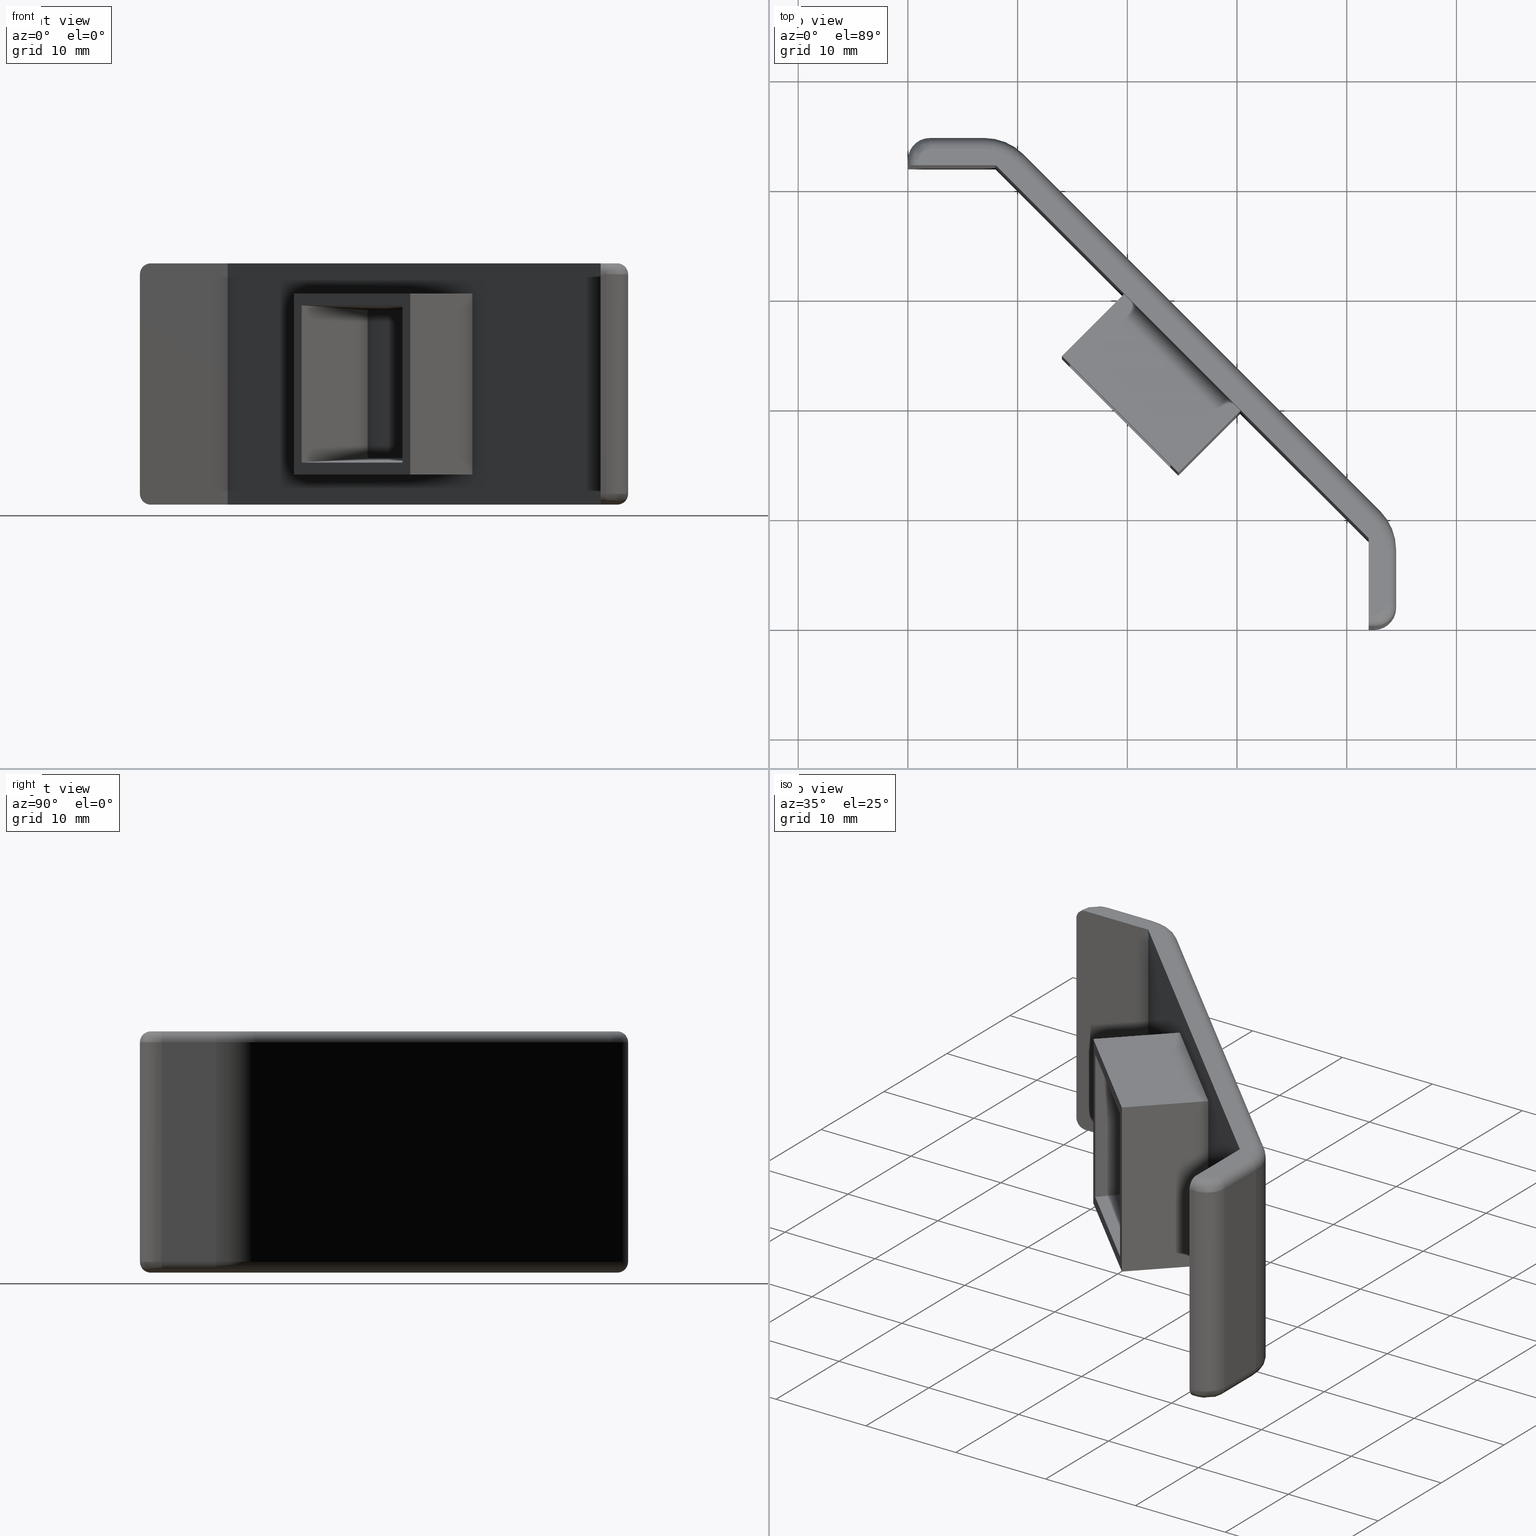
[diagram: canonical four-view strip — front | top / right | iso, engineering-drawing reading convention]
A machine part, canonical four-view strip (front | top / right | iso — engineering-drawing reading convention). The complete STEP part file that produces these views, byte-faithful:
ISO-10303-21;
HEADER;
/* Generated by software containing ST-Developer
 * from STEP Tools, Inc. (www.steptools.com) 
 */

FILE_DESCRIPTION(
/* description */ ('STEP AP203'),
/* implementation_level */ '2;1');

FILE_NAME(
/* name */ 
'Q:\\Catalogo\\2_Accessori Dierre\\Per Download Web e catalogo cartace
o\\CATALOGO ELEMENTI ASSEMBLAGGIO\\PAGINA 36\\CTPYY0000018.stp',
/* time_stamp */ '2018-11-02T11:51:39+01:00',
/* author */ ('fzagni'),
/* organization */ (''),
/* preprocessor_version */ 'ST-DEVELOPER v16.1',
/* originating_system */ 'Autodesk Inventor 2016',
/* authorisation */ '');

FILE_SCHEMA (('AUTOMOTIVE_DESIGN { 1 0 10303 214 3 1 1 }'));
ENDSEC;

DATA;
#10=MECHANICAL_DESIGN_GEOMETRIC_PRESENTATION_REPRESENTATION('',(#16),#1228);
#11=DIMENSIONAL_EXPONENTS(0.,0.,0.,0.,0.,0.,0.);
#12=(
CONVERSION_BASED_UNIT('degree',#13)
NAMED_UNIT(#11)
PLANE_ANGLE_UNIT()
);
#13=PLANE_ANGLE_MEASURE_WITH_UNIT(PLANE_ANGLE_MEASURE(0.01745329252),#1231);
#14=SHAPE_REPRESENTATION_RELATIONSHIP('SRR','None',#1234,#15);
#15=ADVANCED_BREP_SHAPE_REPRESENTATION('',(#17),#1227);
#16=STYLED_ITEM('',(#1243),#17);
#17=MANIFOLD_SOLID_BREP('Solido1',#704);
#18=TOROIDAL_SURFACE('',#770,4.,1.);
#19=TOROIDAL_SURFACE('',#774,4.,1.);
#20=TOROIDAL_SURFACE('',#775,4.,1.);
#21=TOROIDAL_SURFACE('',#779,4.,1.);
#22=(
BOUNDED_SURFACE()
B_SPLINE_SURFACE(2,2,((#1155,#1156,#1157),(#1158,#1159,#1160),(#1161,#1162,
#1163)),.UNSPECIFIED.,.F.,.F.,.F.)
B_SPLINE_SURFACE_WITH_KNOTS((3,3),(3,3),(0.,1.5707963267949),(-1.5707963267949,
0.),.UNSPECIFIED.)
GEOMETRIC_REPRESENTATION_ITEM()
RATIONAL_B_SPLINE_SURFACE(((1.,0.707106781186548,1.),(0.707106781186552,
0.500000000000003,0.707106781186552),(1.,0.707106781186548,1.)))
REPRESENTATION_ITEM('')
SURFACE()
);
#23=(
BOUNDED_SURFACE()
B_SPLINE_SURFACE(2,2,((#1172,#1173,#1174),(#1175,#1176,#1177),(#1178,#1179,
#1180)),.UNSPECIFIED.,.F.,.F.,.F.)
B_SPLINE_SURFACE_WITH_KNOTS((3,3),(3,3),(0.,1.5707963267949),(1.5707963267949,
3.14159265358979),.UNSPECIFIED.)
GEOMETRIC_REPRESENTATION_ITEM()
RATIONAL_B_SPLINE_SURFACE(((1.,0.707106781186548,1.),(0.707106781186548,
0.500000000000001,0.707106781186548),(1.,0.707106781186548,1.)))
REPRESENTATION_ITEM('')
SURFACE()
);
#24=(
BOUNDED_SURFACE()
B_SPLINE_SURFACE(2,2,((#1186,#1187,#1188),(#1189,#1190,#1191),(#1192,#1193,
#1194)),.UNSPECIFIED.,.F.,.F.,.F.)
B_SPLINE_SURFACE_WITH_KNOTS((3,3),(3,3),(-1.5707963267949,0.),(1.5707963267949,
3.14159265358979),.UNSPECIFIED.)
GEOMETRIC_REPRESENTATION_ITEM()
RATIONAL_B_SPLINE_SURFACE(((1.,0.707106781186548,1.),(0.707106781186548,
0.500000000000001,0.707106781186548),(1.,0.707106781186548,1.)))
REPRESENTATION_ITEM('')
SURFACE()
);
#25=(
BOUNDED_SURFACE()
B_SPLINE_SURFACE(2,2,((#1200,#1201,#1202),(#1203,#1204,#1205),(#1206,#1207,
#1208)),.UNSPECIFIED.,.F.,.F.,.F.)
B_SPLINE_SURFACE_WITH_KNOTS((3,3),(3,3),(-1.5707963267949,0.),(-1.5707963267949,
0.),.UNSPECIFIED.)
GEOMETRIC_REPRESENTATION_ITEM()
RATIONAL_B_SPLINE_SURFACE(((1.,0.707106781186548,1.),(0.707106781186552,
0.500000000000003,0.707106781186552),(1.,0.707106781186548,1.)))
REPRESENTATION_ITEM('')
SURFACE()
);
#26=CYLINDRICAL_SURFACE('',#731,2.);
#27=CYLINDRICAL_SURFACE('',#734,2.);
#28=CYLINDRICAL_SURFACE('',#744,1.);
#29=CYLINDRICAL_SURFACE('',#747,1.);
#30=CYLINDRICAL_SURFACE('',#749,1.);
#31=CYLINDRICAL_SURFACE('',#751,0.999999999999998);
#32=CYLINDRICAL_SURFACE('',#755,1.);
#33=CYLINDRICAL_SURFACE('',#757,1.);
#34=CYLINDRICAL_SURFACE('',#760,1.);
#35=CYLINDRICAL_SURFACE('',#762,1.);
#36=CYLINDRICAL_SURFACE('',#765,0.999999999999998);
#37=CYLINDRICAL_SURFACE('',#768,1.);
#38=CYLINDRICAL_SURFACE('',#772,5.);
#39=CYLINDRICAL_SURFACE('',#777,5.);
#40=FACE_BOUND('',#87,.T.);
#41=FACE_BOUND('',#104,.T.);
#42=FACE_OUTER_BOUND('',#84,.T.);
#43=FACE_OUTER_BOUND('',#85,.T.);
#44=FACE_OUTER_BOUND('',#86,.T.);
#45=FACE_OUTER_BOUND('',#88,.T.);
#46=FACE_OUTER_BOUND('',#89,.T.);
#47=FACE_OUTER_BOUND('',#90,.T.);
#48=FACE_OUTER_BOUND('',#91,.T.);
#49=FACE_OUTER_BOUND('',#92,.T.);
#50=FACE_OUTER_BOUND('',#93,.T.);
#51=FACE_OUTER_BOUND('',#94,.T.);
#52=FACE_OUTER_BOUND('',#95,.T.);
#53=FACE_OUTER_BOUND('',#96,.T.);
#54=FACE_OUTER_BOUND('',#97,.T.);
#55=FACE_OUTER_BOUND('',#98,.T.);
#56=FACE_OUTER_BOUND('',#99,.T.);
#57=FACE_OUTER_BOUND('',#100,.T.);
#58=FACE_OUTER_BOUND('',#101,.T.);
#59=FACE_OUTER_BOUND('',#102,.T.);
#60=FACE_OUTER_BOUND('',#103,.T.);
#61=FACE_OUTER_BOUND('',#105,.T.);
#62=FACE_OUTER_BOUND('',#106,.T.);
#63=FACE_OUTER_BOUND('',#107,.T.);
#64=FACE_OUTER_BOUND('',#108,.T.);
#65=FACE_OUTER_BOUND('',#109,.T.);
#66=FACE_OUTER_BOUND('',#110,.T.);
#67=FACE_OUTER_BOUND('',#111,.T.);
#68=FACE_OUTER_BOUND('',#112,.T.);
#69=FACE_OUTER_BOUND('',#113,.T.);
#70=FACE_OUTER_BOUND('',#114,.T.);
#71=FACE_OUTER_BOUND('',#115,.T.);
#72=FACE_OUTER_BOUND('',#116,.T.);
#73=FACE_OUTER_BOUND('',#117,.T.);
#74=FACE_OUTER_BOUND('',#118,.T.);
#75=FACE_OUTER_BOUND('',#119,.T.);
#76=FACE_OUTER_BOUND('',#120,.T.);
#77=FACE_OUTER_BOUND('',#121,.T.);
#78=FACE_OUTER_BOUND('',#122,.T.);
#79=FACE_OUTER_BOUND('',#123,.T.);
#80=FACE_OUTER_BOUND('',#124,.T.);
#81=FACE_OUTER_BOUND('',#125,.T.);
#82=FACE_OUTER_BOUND('',#126,.T.);
#83=FACE_OUTER_BOUND('',#127,.T.);
#84=EDGE_LOOP('',(#446,#447,#448,#449,#450,#451,#452,#453,#454,#455,#456,
#457));
#85=EDGE_LOOP('',(#458,#459,#460,#461,#462,#463,#464,#465,#466,#467,#468,
#469));
#86=EDGE_LOOP('',(#470,#471,#472,#473));
#87=EDGE_LOOP('',(#474,#475,#476,#477));
#88=EDGE_LOOP('',(#478,#479,#480,#481));
#89=EDGE_LOOP('',(#482,#483,#484,#485));
#90=EDGE_LOOP('',(#486,#487,#488,#489));
#91=EDGE_LOOP('',(#490,#491,#492,#493));
#92=EDGE_LOOP('',(#494,#495,#496,#497,#498,#499));
#93=EDGE_LOOP('',(#500,#501,#502,#503,#504,#505));
#94=EDGE_LOOP('',(#506,#507,#508,#509));
#95=EDGE_LOOP('',(#510,#511,#512,#513));
#96=EDGE_LOOP('',(#514,#515,#516,#517));
#97=EDGE_LOOP('',(#518,#519,#520,#521));
#98=EDGE_LOOP('',(#522,#523,#524,#525));
#99=EDGE_LOOP('',(#526,#527,#528,#529));
#100=EDGE_LOOP('',(#530,#531,#532,#533));
#101=EDGE_LOOP('',(#534,#535,#536,#537));
#102=EDGE_LOOP('',(#538,#539,#540,#541));
#103=EDGE_LOOP('',(#542,#543,#544,#545));
#104=EDGE_LOOP('',(#546,#547,#548,#549));
#105=EDGE_LOOP('',(#550,#551,#552,#553));
#106=EDGE_LOOP('',(#554,#555,#556,#557));
#107=EDGE_LOOP('',(#558,#559,#560,#561));
#108=EDGE_LOOP('',(#562,#563,#564,#565));
#109=EDGE_LOOP('',(#566,#567,#568,#569));
#110=EDGE_LOOP('',(#570,#571,#572,#573));
#111=EDGE_LOOP('',(#574,#575,#576,#577));
#112=EDGE_LOOP('',(#578,#579,#580,#581));
#113=EDGE_LOOP('',(#582,#583,#584,#585));
#114=EDGE_LOOP('',(#586,#587,#588,#589));
#115=EDGE_LOOP('',(#590,#591,#592,#593));
#116=EDGE_LOOP('',(#594,#595,#596,#597));
#117=EDGE_LOOP('',(#598,#599,#600,#601));
#118=EDGE_LOOP('',(#602,#603,#604,#605));
#119=EDGE_LOOP('',(#606,#607,#608,#609));
#120=EDGE_LOOP('',(#610,#611,#612,#613));
#121=EDGE_LOOP('',(#614,#615,#616,#617));
#122=EDGE_LOOP('',(#618,#619,#620,#621));
#123=EDGE_LOOP('',(#622,#623,#624,#625));
#124=EDGE_LOOP('',(#626,#627,#628,#629));
#125=EDGE_LOOP('',(#630,#631,#632,#633));
#126=EDGE_LOOP('',(#634,#635,#636,#637));
#127=EDGE_LOOP('',(#638,#639,#640,#641));
#128=LINE('',#998,#190);
#129=LINE('',#1002,#191);
#130=LINE('',#1004,#192);
#131=LINE('',#1006,#193);
#132=LINE('',#1008,#194);
#133=LINE('',#1010,#195);
#134=LINE('',#1014,#196);
#135=LINE('',#1017,#197);
#136=LINE('',#1023,#198);
#137=LINE('',#1027,#199);
#138=LINE('',#1031,#200);
#139=LINE('',#1033,#201);
#140=LINE('',#1035,#202);
#141=LINE('',#1037,#203);
#142=LINE('',#1039,#204);
#143=LINE('',#1042,#205);
#144=LINE('',#1044,#206);
#145=LINE('',#1045,#207);
#146=LINE('',#1048,#208);
#147=LINE('',#1050,#209);
#148=LINE('',#1052,#210);
#149=LINE('',#1053,#211);
#150=LINE('',#1057,#212);
#151=LINE('',#1059,#213);
#152=LINE('',#1061,#214);
#153=LINE('',#1062,#215);
#154=LINE('',#1065,#216);
#155=LINE('',#1067,#217);
#156=LINE('',#1068,#218);
#157=LINE('',#1071,#219);
#158=LINE('',#1073,#220);
#159=LINE('',#1074,#221);
#160=LINE('',#1078,#222);
#161=LINE('',#1080,#223);
#162=LINE('',#1082,#224);
#163=LINE('',#1083,#225);
#164=LINE('',#1090,#226);
#165=LINE('',#1096,#227);
#166=LINE('',#1097,#228);
#167=LINE('',#1098,#229);
#168=LINE('',#1102,#230);
#169=LINE('',#1104,#231);
#170=LINE('',#1106,#232);
#171=LINE('',#1107,#233);
#172=LINE('',#1111,#234);
#173=LINE('',#1113,#235);
#174=LINE('',#1115,#236);
#175=LINE('',#1116,#237);
#176=LINE('',#1120,#238);
#177=LINE('',#1122,#239);
#178=LINE('',#1124,#240);
#179=LINE('',#1125,#241);
#180=LINE('',#1134,#242);
#181=LINE('',#1136,#243);
#182=LINE('',#1137,#244);
#183=LINE('',#1140,#245);
#184=LINE('',#1142,#246);
#185=LINE('',#1143,#247);
#186=LINE('',#1145,#248);
#187=LINE('',#1147,#249);
#188=LINE('',#1148,#250);
#189=LINE('',#1149,#251);
#190=VECTOR('',#786,4.96446609406726);
#191=VECTOR('',#789,0.499999999999998);
#192=VECTOR('',#790,7.);
#193=VECTOR('',#791,48.0832611206852);
#194=VECTOR('',#792,7.);
#195=VECTOR('',#793,0.499999999999998);
#196=VECTOR('',#796,4.96446609406726);
#197=VECTOR('',#799,46.0121933088198);
#198=VECTOR('',#804,46.0121933088198);
#199=VECTOR('',#807,4.96446609406726);
#200=VECTOR('',#810,0.5);
#201=VECTOR('',#811,7.);
#202=VECTOR('',#812,48.0832611206852);
#203=VECTOR('',#813,7.);
#204=VECTOR('',#814,0.499999999999998);
#205=VECTOR('',#817,4.96446609406726);
#206=VECTOR('',#820,22.);
#207=VECTOR('',#821,22.);
#208=VECTOR('',#822,15.);
#209=VECTOR('',#823,16.5);
#210=VECTOR('',#824,15.);
#211=VECTOR('',#825,16.5);
#212=VECTOR('',#828,12.);
#213=VECTOR('',#829,13.5);
#214=VECTOR('',#830,12.);
#215=VECTOR('',#831,13.5);
#216=VECTOR('',#834,8.02656718785062);
#217=VECTOR('',#835,8.02656718785063);
#218=VECTOR('',#836,13.);
#219=VECTOR('',#839,8.02656718785063);
#220=VECTOR('',#840,8.02656718785062);
#221=VECTOR('',#841,13.);
#222=VECTOR('',#844,20.);
#223=VECTOR('',#845,0.499999999999998);
#224=VECTOR('',#846,20.);
#225=VECTOR('',#847,0.499999999999998);
#226=VECTOR('',#856,20.);
#227=VECTOR('',#863,20.);
#228=VECTOR('',#864,0.499999999999998);
#229=VECTOR('',#865,0.499999999999998);
#230=VECTOR('',#868,4.96446609406726);
#231=VECTOR('',#869,20.);
#232=VECTOR('',#870,4.96446609406726);
#233=VECTOR('',#871,20.);
#234=VECTOR('',#874,46.0121933088198);
#235=VECTOR('',#875,20.);
#236=VECTOR('',#876,46.0121933088198);
#237=VECTOR('',#877,20.);
#238=VECTOR('',#880,4.96446609406726);
#239=VECTOR('',#881,20.);
#240=VECTOR('',#882,4.96446609406726);
#241=VECTOR('',#883,20.);
#242=VECTOR('',#898,8.);
#243=VECTOR('',#899,16.5);
#244=VECTOR('',#900,8.);
#245=VECTOR('',#903,8.00000000000001);
#246=VECTOR('',#904,16.5);
#247=VECTOR('',#905,8.00000000000001);
#248=VECTOR('',#908,15.);
#249=VECTOR('',#911,15.);
#250=VECTOR('',#912,14.3385244685287);
#251=VECTOR('',#913,14.3385244685287);
#252=CIRCLE('',#707,4.);
#253=CIRCLE('',#708,1.);
#254=CIRCLE('',#709,1.);
#255=CIRCLE('',#710,4.);
#256=CIRCLE('',#712,4.);
#257=CIRCLE('',#713,4.);
#258=CIRCLE('',#714,1.);
#259=CIRCLE('',#715,1.);
#260=CIRCLE('',#722,1.);
#261=CIRCLE('',#723,1.);
#262=CIRCLE('',#725,1.);
#263=CIRCLE('',#726,1.);
#264=CIRCLE('',#732,2.);
#265=CIRCLE('',#733,2.);
#266=CIRCLE('',#735,2.);
#267=CIRCLE('',#736,2.);
#268=CIRCLE('',#745,1.);
#269=CIRCLE('',#746,1.);
#270=CIRCLE('',#748,1.);
#271=CIRCLE('',#750,1.);
#272=CIRCLE('',#752,0.999999999999999);
#273=CIRCLE('',#753,0.999999999999999);
#274=CIRCLE('',#754,1.);
#275=CIRCLE('',#756,1.);
#276=CIRCLE('',#758,1.);
#277=CIRCLE('',#759,1.);
#278=CIRCLE('',#761,1.);
#279=CIRCLE('',#763,1.);
#280=CIRCLE('',#764,1.);
#281=CIRCLE('',#766,0.999999999999999);
#282=CIRCLE('',#767,0.999999999999999);
#283=CIRCLE('',#769,1.);
#284=CIRCLE('',#771,5.);
#285=CIRCLE('',#773,5.);
#286=CIRCLE('',#776,5.);
#287=CIRCLE('',#778,5.);
#288=VERTEX_POINT('',#994);
#289=VERTEX_POINT('',#995);
#290=VERTEX_POINT('',#997);
#291=VERTEX_POINT('',#999);
#292=VERTEX_POINT('',#1001);
#293=VERTEX_POINT('',#1003);
#294=VERTEX_POINT('',#1005);
#295=VERTEX_POINT('',#1007);
#296=VERTEX_POINT('',#1009);
#297=VERTEX_POINT('',#1011);
#298=VERTEX_POINT('',#1013);
#299=VERTEX_POINT('',#1015);
#300=VERTEX_POINT('',#1019);
#301=VERTEX_POINT('',#1020);
#302=VERTEX_POINT('',#1022);
#303=VERTEX_POINT('',#1024);
#304=VERTEX_POINT('',#1026);
#305=VERTEX_POINT('',#1028);
#306=VERTEX_POINT('',#1030);
#307=VERTEX_POINT('',#1032);
#308=VERTEX_POINT('',#1034);
#309=VERTEX_POINT('',#1036);
#310=VERTEX_POINT('',#1038);
#311=VERTEX_POINT('',#1040);
#312=VERTEX_POINT('',#1046);
#313=VERTEX_POINT('',#1047);
#314=VERTEX_POINT('',#1049);
#315=VERTEX_POINT('',#1051);
#316=VERTEX_POINT('',#1055);
#317=VERTEX_POINT('',#1056);
#318=VERTEX_POINT('',#1058);
#319=VERTEX_POINT('',#1060);
#320=VERTEX_POINT('',#1064);
#321=VERTEX_POINT('',#1066);
#322=VERTEX_POINT('',#1070);
#323=VERTEX_POINT('',#1072);
#324=VERTEX_POINT('',#1076);
#325=VERTEX_POINT('',#1077);
#326=VERTEX_POINT('',#1079);
#327=VERTEX_POINT('',#1081);
#328=VERTEX_POINT('',#1088);
#329=VERTEX_POINT('',#1089);
#330=VERTEX_POINT('',#1094);
#331=VERTEX_POINT('',#1095);
#332=VERTEX_POINT('',#1100);
#333=VERTEX_POINT('',#1101);
#334=VERTEX_POINT('',#1103);
#335=VERTEX_POINT('',#1105);
#336=VERTEX_POINT('',#1109);
#337=VERTEX_POINT('',#1110);
#338=VERTEX_POINT('',#1112);
#339=VERTEX_POINT('',#1114);
#340=VERTEX_POINT('',#1118);
#341=VERTEX_POINT('',#1119);
#342=VERTEX_POINT('',#1121);
#343=VERTEX_POINT('',#1123);
#344=VERTEX_POINT('',#1133);
#345=VERTEX_POINT('',#1135);
#346=VERTEX_POINT('',#1139);
#347=VERTEX_POINT('',#1141);
#348=EDGE_CURVE('',#288,#289,#252,.T.);
#349=EDGE_CURVE('',#288,#290,#128,.T.);
#350=EDGE_CURVE('',#290,#291,#253,.T.);
#351=EDGE_CURVE('',#291,#292,#129,.T.);
#352=EDGE_CURVE('',#292,#293,#130,.T.);
#353=EDGE_CURVE('',#293,#294,#131,.T.);
#354=EDGE_CURVE('',#294,#295,#132,.T.);
#355=EDGE_CURVE('',#295,#296,#133,.T.);
#356=EDGE_CURVE('',#296,#297,#254,.T.);
#357=EDGE_CURVE('',#297,#298,#134,.T.);
#358=EDGE_CURVE('',#299,#298,#255,.T.);
#359=EDGE_CURVE('',#299,#289,#135,.T.);
#360=EDGE_CURVE('',#300,#301,#256,.T.);
#361=EDGE_CURVE('',#300,#302,#136,.T.);
#362=EDGE_CURVE('',#303,#302,#257,.T.);
#363=EDGE_CURVE('',#303,#304,#137,.T.);
#364=EDGE_CURVE('',#304,#305,#258,.T.);
#365=EDGE_CURVE('',#305,#306,#138,.T.);
#366=EDGE_CURVE('',#307,#306,#139,.T.);
#367=EDGE_CURVE('',#308,#307,#140,.T.);
#368=EDGE_CURVE('',#309,#308,#141,.T.);
#369=EDGE_CURVE('',#309,#310,#142,.T.);
#370=EDGE_CURVE('',#310,#311,#259,.T.);
#371=EDGE_CURVE('',#311,#301,#143,.T.);
#372=EDGE_CURVE('',#294,#307,#144,.T.);
#373=EDGE_CURVE('',#293,#308,#145,.T.);
#374=EDGE_CURVE('',#312,#313,#146,.T.);
#375=EDGE_CURVE('',#314,#312,#147,.T.);
#376=EDGE_CURVE('',#315,#314,#148,.T.);
#377=EDGE_CURVE('',#313,#315,#149,.T.);
#378=EDGE_CURVE('',#316,#317,#150,.T.);
#379=EDGE_CURVE('',#318,#316,#151,.T.);
#380=EDGE_CURVE('',#319,#318,#152,.T.);
#381=EDGE_CURVE('',#319,#317,#153,.T.);
#382=EDGE_CURVE('',#316,#320,#154,.T.);
#383=EDGE_CURVE('',#321,#317,#155,.T.);
#384=EDGE_CURVE('',#320,#321,#156,.T.);
#385=EDGE_CURVE('',#322,#319,#157,.T.);
#386=EDGE_CURVE('',#318,#323,#158,.T.);
#387=EDGE_CURVE('',#322,#323,#159,.T.);
#388=EDGE_CURVE('',#324,#325,#160,.T.);
#389=EDGE_CURVE('',#324,#326,#161,.T.);
#390=EDGE_CURVE('',#326,#327,#162,.T.);
#391=EDGE_CURVE('',#327,#325,#163,.T.);
#392=EDGE_CURVE('',#292,#324,#260,.T.);
#393=EDGE_CURVE('',#325,#309,#261,.T.);
#394=EDGE_CURVE('',#328,#329,#164,.T.);
#395=EDGE_CURVE('',#328,#295,#262,.T.);
#396=EDGE_CURVE('',#306,#329,#263,.T.);
#397=EDGE_CURVE('',#330,#331,#165,.T.);
#398=EDGE_CURVE('',#331,#328,#166,.T.);
#399=EDGE_CURVE('',#329,#330,#167,.T.);
#400=EDGE_CURVE('',#332,#333,#168,.T.);
#401=EDGE_CURVE('',#333,#334,#169,.T.);
#402=EDGE_CURVE('',#334,#335,#170,.T.);
#403=EDGE_CURVE('',#335,#332,#171,.T.);
#404=EDGE_CURVE('',#336,#337,#172,.T.);
#405=EDGE_CURVE('',#337,#338,#173,.T.);
#406=EDGE_CURVE('',#338,#339,#174,.T.);
#407=EDGE_CURVE('',#339,#336,#175,.T.);
#408=EDGE_CURVE('',#340,#341,#176,.T.);
#409=EDGE_CURVE('',#341,#342,#177,.T.);
#410=EDGE_CURVE('',#342,#343,#178,.T.);
#411=EDGE_CURVE('',#343,#340,#179,.T.);
#412=EDGE_CURVE('',#335,#331,#264,.T.);
#413=EDGE_CURVE('',#330,#332,#265,.T.);
#414=EDGE_CURVE('',#326,#340,#266,.T.);
#415=EDGE_CURVE('',#343,#327,#267,.T.);
#416=EDGE_CURVE('',#344,#312,#180,.T.);
#417=EDGE_CURVE('',#345,#344,#181,.T.);
#418=EDGE_CURVE('',#345,#314,#182,.T.);
#419=EDGE_CURVE('',#346,#315,#183,.T.);
#420=EDGE_CURVE('',#347,#346,#184,.T.);
#421=EDGE_CURVE('',#347,#313,#185,.T.);
#422=EDGE_CURVE('',#346,#345,#186,.T.);
#423=EDGE_CURVE('',#344,#347,#187,.T.);
#424=EDGE_CURVE('',#322,#321,#188,.T.);
#425=EDGE_CURVE('',#323,#320,#189,.T.);
#426=EDGE_CURVE('',#296,#331,#268,.T.);
#427=EDGE_CURVE('',#297,#335,#269,.T.);
#428=EDGE_CURVE('',#334,#298,#270,.T.);
#429=EDGE_CURVE('',#326,#291,#271,.T.);
#430=EDGE_CURVE('',#336,#289,#272,.T.);
#431=EDGE_CURVE('',#299,#337,#273,.T.);
#432=EDGE_CURVE('',#340,#290,#274,.T.);
#433=EDGE_CURVE('',#288,#341,#275,.T.);
#434=EDGE_CURVE('',#310,#327,#276,.T.);
#435=EDGE_CURVE('',#311,#343,#277,.T.);
#436=EDGE_CURVE('',#330,#305,#278,.T.);
#437=EDGE_CURVE('',#342,#301,#279,.T.);
#438=EDGE_CURVE('',#332,#304,#280,.T.);
#439=EDGE_CURVE('',#338,#302,#281,.T.);
#440=EDGE_CURVE('',#300,#339,#282,.T.);
#441=EDGE_CURVE('',#303,#333,#283,.T.);
#442=EDGE_CURVE('',#341,#336,#284,.T.);
#443=EDGE_CURVE('',#342,#339,#285,.T.);
#444=EDGE_CURVE('',#337,#334,#286,.T.);
#445=EDGE_CURVE('',#338,#333,#287,.T.);
#446=ORIENTED_EDGE('',*,*,#348,.F.);
#447=ORIENTED_EDGE('',*,*,#349,.T.);
#448=ORIENTED_EDGE('',*,*,#350,.T.);
#449=ORIENTED_EDGE('',*,*,#351,.T.);
#450=ORIENTED_EDGE('',*,*,#352,.T.);
#451=ORIENTED_EDGE('',*,*,#353,.T.);
#452=ORIENTED_EDGE('',*,*,#354,.T.);
#453=ORIENTED_EDGE('',*,*,#355,.T.);
#454=ORIENTED_EDGE('',*,*,#356,.T.);
#455=ORIENTED_EDGE('',*,*,#357,.T.);
#456=ORIENTED_EDGE('',*,*,#358,.F.);
#457=ORIENTED_EDGE('',*,*,#359,.T.);
#458=ORIENTED_EDGE('',*,*,#360,.F.);
#459=ORIENTED_EDGE('',*,*,#361,.T.);
#460=ORIENTED_EDGE('',*,*,#362,.F.);
#461=ORIENTED_EDGE('',*,*,#363,.T.);
#462=ORIENTED_EDGE('',*,*,#364,.T.);
#463=ORIENTED_EDGE('',*,*,#365,.T.);
#464=ORIENTED_EDGE('',*,*,#366,.F.);
#465=ORIENTED_EDGE('',*,*,#367,.F.);
#466=ORIENTED_EDGE('',*,*,#368,.F.);
#467=ORIENTED_EDGE('',*,*,#369,.T.);
#468=ORIENTED_EDGE('',*,*,#370,.T.);
#469=ORIENTED_EDGE('',*,*,#371,.T.);
#470=ORIENTED_EDGE('',*,*,#367,.T.);
#471=ORIENTED_EDGE('',*,*,#372,.F.);
#472=ORIENTED_EDGE('',*,*,#353,.F.);
#473=ORIENTED_EDGE('',*,*,#373,.T.);
#474=ORIENTED_EDGE('',*,*,#374,.F.);
#475=ORIENTED_EDGE('',*,*,#375,.F.);
#476=ORIENTED_EDGE('',*,*,#376,.F.);
#477=ORIENTED_EDGE('',*,*,#377,.F.);
#478=ORIENTED_EDGE('',*,*,#378,.F.);
#479=ORIENTED_EDGE('',*,*,#379,.F.);
#480=ORIENTED_EDGE('',*,*,#380,.F.);
#481=ORIENTED_EDGE('',*,*,#381,.T.);
#482=ORIENTED_EDGE('',*,*,#382,.F.);
#483=ORIENTED_EDGE('',*,*,#378,.T.);
#484=ORIENTED_EDGE('',*,*,#383,.F.);
#485=ORIENTED_EDGE('',*,*,#384,.F.);
#486=ORIENTED_EDGE('',*,*,#385,.T.);
#487=ORIENTED_EDGE('',*,*,#380,.T.);
#488=ORIENTED_EDGE('',*,*,#386,.T.);
#489=ORIENTED_EDGE('',*,*,#387,.F.);
#490=ORIENTED_EDGE('',*,*,#388,.F.);
#491=ORIENTED_EDGE('',*,*,#389,.T.);
#492=ORIENTED_EDGE('',*,*,#390,.T.);
#493=ORIENTED_EDGE('',*,*,#391,.T.);
#494=ORIENTED_EDGE('',*,*,#352,.F.);
#495=ORIENTED_EDGE('',*,*,#392,.T.);
#496=ORIENTED_EDGE('',*,*,#388,.T.);
#497=ORIENTED_EDGE('',*,*,#393,.T.);
#498=ORIENTED_EDGE('',*,*,#368,.T.);
#499=ORIENTED_EDGE('',*,*,#373,.F.);
#500=ORIENTED_EDGE('',*,*,#394,.F.);
#501=ORIENTED_EDGE('',*,*,#395,.T.);
#502=ORIENTED_EDGE('',*,*,#354,.F.);
#503=ORIENTED_EDGE('',*,*,#372,.T.);
#504=ORIENTED_EDGE('',*,*,#366,.T.);
#505=ORIENTED_EDGE('',*,*,#396,.T.);
#506=ORIENTED_EDGE('',*,*,#397,.T.);
#507=ORIENTED_EDGE('',*,*,#398,.T.);
#508=ORIENTED_EDGE('',*,*,#394,.T.);
#509=ORIENTED_EDGE('',*,*,#399,.T.);
#510=ORIENTED_EDGE('',*,*,#400,.T.);
#511=ORIENTED_EDGE('',*,*,#401,.T.);
#512=ORIENTED_EDGE('',*,*,#402,.T.);
#513=ORIENTED_EDGE('',*,*,#403,.T.);
#514=ORIENTED_EDGE('',*,*,#404,.T.);
#515=ORIENTED_EDGE('',*,*,#405,.T.);
#516=ORIENTED_EDGE('',*,*,#406,.T.);
#517=ORIENTED_EDGE('',*,*,#407,.T.);
#518=ORIENTED_EDGE('',*,*,#408,.T.);
#519=ORIENTED_EDGE('',*,*,#409,.T.);
#520=ORIENTED_EDGE('',*,*,#410,.T.);
#521=ORIENTED_EDGE('',*,*,#411,.T.);
#522=ORIENTED_EDGE('',*,*,#403,.F.);
#523=ORIENTED_EDGE('',*,*,#412,.T.);
#524=ORIENTED_EDGE('',*,*,#397,.F.);
#525=ORIENTED_EDGE('',*,*,#413,.T.);
#526=ORIENTED_EDGE('',*,*,#390,.F.);
#527=ORIENTED_EDGE('',*,*,#414,.T.);
#528=ORIENTED_EDGE('',*,*,#411,.F.);
#529=ORIENTED_EDGE('',*,*,#415,.T.);
#530=ORIENTED_EDGE('',*,*,#375,.T.);
#531=ORIENTED_EDGE('',*,*,#416,.F.);
#532=ORIENTED_EDGE('',*,*,#417,.F.);
#533=ORIENTED_EDGE('',*,*,#418,.T.);
#534=ORIENTED_EDGE('',*,*,#419,.F.);
#535=ORIENTED_EDGE('',*,*,#420,.F.);
#536=ORIENTED_EDGE('',*,*,#421,.T.);
#537=ORIENTED_EDGE('',*,*,#377,.T.);
#538=ORIENTED_EDGE('',*,*,#376,.T.);
#539=ORIENTED_EDGE('',*,*,#418,.F.);
#540=ORIENTED_EDGE('',*,*,#422,.F.);
#541=ORIENTED_EDGE('',*,*,#419,.T.);
#542=ORIENTED_EDGE('',*,*,#417,.T.);
#543=ORIENTED_EDGE('',*,*,#423,.T.);
#544=ORIENTED_EDGE('',*,*,#420,.T.);
#545=ORIENTED_EDGE('',*,*,#422,.T.);
#546=ORIENTED_EDGE('',*,*,#424,.F.);
#547=ORIENTED_EDGE('',*,*,#387,.T.);
#548=ORIENTED_EDGE('',*,*,#425,.T.);
#549=ORIENTED_EDGE('',*,*,#384,.T.);
#550=ORIENTED_EDGE('',*,*,#374,.T.);
#551=ORIENTED_EDGE('',*,*,#421,.F.);
#552=ORIENTED_EDGE('',*,*,#423,.F.);
#553=ORIENTED_EDGE('',*,*,#416,.T.);
#554=ORIENTED_EDGE('',*,*,#386,.F.);
#555=ORIENTED_EDGE('',*,*,#379,.T.);
#556=ORIENTED_EDGE('',*,*,#382,.T.);
#557=ORIENTED_EDGE('',*,*,#425,.F.);
#558=ORIENTED_EDGE('',*,*,#385,.F.);
#559=ORIENTED_EDGE('',*,*,#424,.T.);
#560=ORIENTED_EDGE('',*,*,#383,.T.);
#561=ORIENTED_EDGE('',*,*,#381,.F.);
#562=ORIENTED_EDGE('',*,*,#395,.F.);
#563=ORIENTED_EDGE('',*,*,#398,.F.);
#564=ORIENTED_EDGE('',*,*,#426,.F.);
#565=ORIENTED_EDGE('',*,*,#355,.F.);
#566=ORIENTED_EDGE('',*,*,#426,.T.);
#567=ORIENTED_EDGE('',*,*,#412,.F.);
#568=ORIENTED_EDGE('',*,*,#427,.F.);
#569=ORIENTED_EDGE('',*,*,#356,.F.);
#570=ORIENTED_EDGE('',*,*,#402,.F.);
#571=ORIENTED_EDGE('',*,*,#428,.T.);
#572=ORIENTED_EDGE('',*,*,#357,.F.);
#573=ORIENTED_EDGE('',*,*,#427,.T.);
#574=ORIENTED_EDGE('',*,*,#392,.F.);
#575=ORIENTED_EDGE('',*,*,#351,.F.);
#576=ORIENTED_EDGE('',*,*,#429,.F.);
#577=ORIENTED_EDGE('',*,*,#389,.F.);
#578=ORIENTED_EDGE('',*,*,#404,.F.);
#579=ORIENTED_EDGE('',*,*,#430,.T.);
#580=ORIENTED_EDGE('',*,*,#359,.F.);
#581=ORIENTED_EDGE('',*,*,#431,.T.);
#582=ORIENTED_EDGE('',*,*,#429,.T.);
#583=ORIENTED_EDGE('',*,*,#350,.F.);
#584=ORIENTED_EDGE('',*,*,#432,.F.);
#585=ORIENTED_EDGE('',*,*,#414,.F.);
#586=ORIENTED_EDGE('',*,*,#349,.F.);
#587=ORIENTED_EDGE('',*,*,#433,.T.);
#588=ORIENTED_EDGE('',*,*,#408,.F.);
#589=ORIENTED_EDGE('',*,*,#432,.T.);
#590=ORIENTED_EDGE('',*,*,#393,.F.);
#591=ORIENTED_EDGE('',*,*,#391,.F.);
#592=ORIENTED_EDGE('',*,*,#434,.F.);
#593=ORIENTED_EDGE('',*,*,#369,.F.);
#594=ORIENTED_EDGE('',*,*,#434,.T.);
#595=ORIENTED_EDGE('',*,*,#415,.F.);
#596=ORIENTED_EDGE('',*,*,#435,.F.);
#597=ORIENTED_EDGE('',*,*,#370,.F.);
#598=ORIENTED_EDGE('',*,*,#396,.F.);
#599=ORIENTED_EDGE('',*,*,#365,.F.);
#600=ORIENTED_EDGE('',*,*,#436,.F.);
#601=ORIENTED_EDGE('',*,*,#399,.F.);
#602=ORIENTED_EDGE('',*,*,#410,.F.);
#603=ORIENTED_EDGE('',*,*,#437,.T.);
#604=ORIENTED_EDGE('',*,*,#371,.F.);
#605=ORIENTED_EDGE('',*,*,#435,.T.);
#606=ORIENTED_EDGE('',*,*,#436,.T.);
#607=ORIENTED_EDGE('',*,*,#364,.F.);
#608=ORIENTED_EDGE('',*,*,#438,.F.);
#609=ORIENTED_EDGE('',*,*,#413,.F.);
#610=ORIENTED_EDGE('',*,*,#406,.F.);
#611=ORIENTED_EDGE('',*,*,#439,.T.);
#612=ORIENTED_EDGE('',*,*,#361,.F.);
#613=ORIENTED_EDGE('',*,*,#440,.T.);
#614=ORIENTED_EDGE('',*,*,#363,.F.);
#615=ORIENTED_EDGE('',*,*,#441,.T.);
#616=ORIENTED_EDGE('',*,*,#400,.F.);
#617=ORIENTED_EDGE('',*,*,#438,.T.);
#618=ORIENTED_EDGE('',*,*,#348,.T.);
#619=ORIENTED_EDGE('',*,*,#430,.F.);
#620=ORIENTED_EDGE('',*,*,#442,.F.);
#621=ORIENTED_EDGE('',*,*,#433,.F.);
#622=ORIENTED_EDGE('',*,*,#442,.T.);
#623=ORIENTED_EDGE('',*,*,#407,.F.);
#624=ORIENTED_EDGE('',*,*,#443,.F.);
#625=ORIENTED_EDGE('',*,*,#409,.F.);
#626=ORIENTED_EDGE('',*,*,#437,.F.);
#627=ORIENTED_EDGE('',*,*,#443,.T.);
#628=ORIENTED_EDGE('',*,*,#440,.F.);
#629=ORIENTED_EDGE('',*,*,#360,.T.);
#630=ORIENTED_EDGE('',*,*,#358,.T.);
#631=ORIENTED_EDGE('',*,*,#428,.F.);
#632=ORIENTED_EDGE('',*,*,#444,.F.);
#633=ORIENTED_EDGE('',*,*,#431,.F.);
#634=ORIENTED_EDGE('',*,*,#444,.T.);
#635=ORIENTED_EDGE('',*,*,#401,.F.);
#636=ORIENTED_EDGE('',*,*,#445,.F.);
#637=ORIENTED_EDGE('',*,*,#405,.F.);
#638=ORIENTED_EDGE('',*,*,#439,.F.);
#639=ORIENTED_EDGE('',*,*,#445,.T.);
#640=ORIENTED_EDGE('',*,*,#441,.F.);
#641=ORIENTED_EDGE('',*,*,#362,.T.);
#642=PLANE('',#706);
#643=PLANE('',#711);
#644=PLANE('',#716);
#645=PLANE('',#717);
#646=PLANE('',#718);
#647=PLANE('',#719);
#648=PLANE('',#720);
#649=PLANE('',#721);
#650=PLANE('',#724);
#651=PLANE('',#727);
#652=PLANE('',#728);
#653=PLANE('',#729);
#654=PLANE('',#730);
#655=PLANE('',#737);
#656=PLANE('',#738);
#657=PLANE('',#739);
#658=PLANE('',#740);
#659=PLANE('',#741);
#660=PLANE('',#742);
#661=PLANE('',#743);
#662=ADVANCED_FACE('',(#42),#642,.T.);
#663=ADVANCED_FACE('',(#43),#643,.F.);
#664=ADVANCED_FACE('',(#44,#40),#644,.F.);
#665=ADVANCED_FACE('',(#45),#645,.F.);
#666=ADVANCED_FACE('',(#46),#646,.T.);
#667=ADVANCED_FACE('',(#47),#647,.T.);
#668=ADVANCED_FACE('',(#48),#648,.F.);
#669=ADVANCED_FACE('',(#49),#649,.F.);
#670=ADVANCED_FACE('',(#50),#650,.F.);
#671=ADVANCED_FACE('',(#51),#651,.F.);
#672=ADVANCED_FACE('',(#52),#652,.F.);
#673=ADVANCED_FACE('',(#53),#653,.F.);
#674=ADVANCED_FACE('',(#54),#654,.F.);
#675=ADVANCED_FACE('',(#55),#26,.T.);
#676=ADVANCED_FACE('',(#56),#27,.T.);
#677=ADVANCED_FACE('',(#57),#655,.F.);
#678=ADVANCED_FACE('',(#58),#656,.F.);
#679=ADVANCED_FACE('',(#59),#657,.F.);
#680=ADVANCED_FACE('',(#60,#41),#658,.F.);
#681=ADVANCED_FACE('',(#61),#659,.F.);
#682=ADVANCED_FACE('',(#62),#660,.F.);
#683=ADVANCED_FACE('',(#63),#661,.F.);
#684=ADVANCED_FACE('',(#64),#28,.T.);
#685=ADVANCED_FACE('',(#65),#22,.F.);
#686=ADVANCED_FACE('',(#66),#29,.T.);
#687=ADVANCED_FACE('',(#67),#30,.T.);
#688=ADVANCED_FACE('',(#68),#31,.T.);
#689=ADVANCED_FACE('',(#69),#23,.F.);
#690=ADVANCED_FACE('',(#70),#32,.T.);
#691=ADVANCED_FACE('',(#71),#33,.T.);
#692=ADVANCED_FACE('',(#72),#24,.F.);
#693=ADVANCED_FACE('',(#73),#34,.T.);
#694=ADVANCED_FACE('',(#74),#35,.T.);
#695=ADVANCED_FACE('',(#75),#25,.F.);
#696=ADVANCED_FACE('',(#76),#36,.T.);
#697=ADVANCED_FACE('',(#77),#37,.T.);
#698=ADVANCED_FACE('',(#78),#18,.T.);
#699=ADVANCED_FACE('',(#79),#38,.T.);
#700=ADVANCED_FACE('',(#80),#19,.T.);
#701=ADVANCED_FACE('',(#81),#20,.T.);
#702=ADVANCED_FACE('',(#82),#39,.T.);
#703=ADVANCED_FACE('',(#83),#21,.T.);
#704=CLOSED_SHELL('',(#662,#663,#664,#665,#666,#667,#668,#669,#670,#671,
#672,#673,#674,#675,#676,#677,#678,#679,#680,#681,#682,#683,#684,#685,#686,
#687,#688,#689,#690,#691,#692,#693,#694,#695,#696,#697,#698,#699,#700,#701,
#702,#703));
#705=AXIS2_PLACEMENT_3D('placement',#992,#780,#781);
#706=AXIS2_PLACEMENT_3D('',#993,#782,#783);
#707=AXIS2_PLACEMENT_3D('',#996,#784,#785);
#708=AXIS2_PLACEMENT_3D('',#1000,#787,#788);
#709=AXIS2_PLACEMENT_3D('',#1012,#794,#795);
#710=AXIS2_PLACEMENT_3D('',#1016,#797,#798);
#711=AXIS2_PLACEMENT_3D('',#1018,#800,#801);
#712=AXIS2_PLACEMENT_3D('',#1021,#802,#803);
#713=AXIS2_PLACEMENT_3D('',#1025,#805,#806);
#714=AXIS2_PLACEMENT_3D('',#1029,#808,#809);
#715=AXIS2_PLACEMENT_3D('',#1041,#815,#816);
#716=AXIS2_PLACEMENT_3D('',#1043,#818,#819);
#717=AXIS2_PLACEMENT_3D('',#1054,#826,#827);
#718=AXIS2_PLACEMENT_3D('',#1063,#832,#833);
#719=AXIS2_PLACEMENT_3D('',#1069,#837,#838);
#720=AXIS2_PLACEMENT_3D('',#1075,#842,#843);
#721=AXIS2_PLACEMENT_3D('',#1084,#848,#849);
#722=AXIS2_PLACEMENT_3D('',#1085,#850,#851);
#723=AXIS2_PLACEMENT_3D('',#1086,#852,#853);
#724=AXIS2_PLACEMENT_3D('',#1087,#854,#855);
#725=AXIS2_PLACEMENT_3D('',#1091,#857,#858);
#726=AXIS2_PLACEMENT_3D('',#1092,#859,#860);
#727=AXIS2_PLACEMENT_3D('',#1093,#861,#862);
#728=AXIS2_PLACEMENT_3D('',#1099,#866,#867);
#729=AXIS2_PLACEMENT_3D('',#1108,#872,#873);
#730=AXIS2_PLACEMENT_3D('',#1117,#878,#879);
#731=AXIS2_PLACEMENT_3D('',#1126,#884,#885);
#732=AXIS2_PLACEMENT_3D('',#1127,#886,#887);
#733=AXIS2_PLACEMENT_3D('',#1128,#888,#889);
#734=AXIS2_PLACEMENT_3D('',#1129,#890,#891);
#735=AXIS2_PLACEMENT_3D('',#1130,#892,#893);
#736=AXIS2_PLACEMENT_3D('',#1131,#894,#895);
#737=AXIS2_PLACEMENT_3D('',#1132,#896,#897);
#738=AXIS2_PLACEMENT_3D('',#1138,#901,#902);
#739=AXIS2_PLACEMENT_3D('',#1144,#906,#907);
#740=AXIS2_PLACEMENT_3D('',#1146,#909,#910);
#741=AXIS2_PLACEMENT_3D('',#1150,#914,#915);
#742=AXIS2_PLACEMENT_3D('',#1151,#916,#917);
#743=AXIS2_PLACEMENT_3D('',#1152,#918,#919);
#744=AXIS2_PLACEMENT_3D('',#1153,#920,#921);
#745=AXIS2_PLACEMENT_3D('',#1154,#922,#923);
#746=AXIS2_PLACEMENT_3D('',#1164,#924,#925);
#747=AXIS2_PLACEMENT_3D('',#1165,#926,#927);
#748=AXIS2_PLACEMENT_3D('',#1166,#928,#929);
#749=AXIS2_PLACEMENT_3D('',#1167,#930,#931);
#750=AXIS2_PLACEMENT_3D('',#1168,#932,#933);
#751=AXIS2_PLACEMENT_3D('',#1169,#934,#935);
#752=AXIS2_PLACEMENT_3D('',#1170,#936,#937);
#753=AXIS2_PLACEMENT_3D('',#1171,#938,#939);
#754=AXIS2_PLACEMENT_3D('',#1181,#940,#941);
#755=AXIS2_PLACEMENT_3D('',#1182,#942,#943);
#756=AXIS2_PLACEMENT_3D('',#1183,#944,#945);
#757=AXIS2_PLACEMENT_3D('',#1184,#946,#947);
#758=AXIS2_PLACEMENT_3D('',#1185,#948,#949);
#759=AXIS2_PLACEMENT_3D('',#1195,#950,#951);
#760=AXIS2_PLACEMENT_3D('',#1196,#952,#953);
#761=AXIS2_PLACEMENT_3D('',#1197,#954,#955);
#762=AXIS2_PLACEMENT_3D('',#1198,#956,#957);
#763=AXIS2_PLACEMENT_3D('',#1199,#958,#959);
#764=AXIS2_PLACEMENT_3D('',#1209,#960,#961);
#765=AXIS2_PLACEMENT_3D('',#1210,#962,#963);
#766=AXIS2_PLACEMENT_3D('',#1211,#964,#965);
#767=AXIS2_PLACEMENT_3D('',#1212,#966,#967);
#768=AXIS2_PLACEMENT_3D('',#1213,#968,#969);
#769=AXIS2_PLACEMENT_3D('',#1214,#970,#971);
#770=AXIS2_PLACEMENT_3D('',#1215,#972,#973);
#771=AXIS2_PLACEMENT_3D('',#1216,#974,#975);
#772=AXIS2_PLACEMENT_3D('',#1217,#976,#977);
#773=AXIS2_PLACEMENT_3D('',#1218,#978,#979);
#774=AXIS2_PLACEMENT_3D('',#1219,#980,#981);
#775=AXIS2_PLACEMENT_3D('',#1220,#982,#983);
#776=AXIS2_PLACEMENT_3D('',#1221,#984,#985);
#777=AXIS2_PLACEMENT_3D('',#1222,#986,#987);
#778=AXIS2_PLACEMENT_3D('',#1223,#988,#989);
#779=AXIS2_PLACEMENT_3D('',#1224,#990,#991);
#780=DIRECTION('axis',(0.,0.,1.));
#781=DIRECTION('refdir',(1.,0.,0.));
#782=DIRECTION('center_axis',(0.,0.,1.));
#783=DIRECTION('ref_axis',(1.,0.,0.));
#784=DIRECTION('center_axis',(0.,0.,-1.));
#785=DIRECTION('ref_axis',(1.,3.46944695195361E-15,0.));
#786=DIRECTION('',(-1.,0.,0.));
#787=DIRECTION('center_axis',(0.,0.,1.));
#788=DIRECTION('ref_axis',(1.,0.,0.));
#789=DIRECTION('',(1.71444889535133E-16,-1.,0.));
#790=DIRECTION('',(1.,0.,0.));
#791=DIRECTION('',(0.707106781186547,-0.707106781186547,0.));
#792=DIRECTION('',(0.,-1.,0.));
#793=DIRECTION('',(1.,0.,0.));
#794=DIRECTION('center_axis',(0.,0.,1.));
#795=DIRECTION('ref_axis',(1.,0.,0.));
#796=DIRECTION('',(0.,1.,0.));
#797=DIRECTION('center_axis',(0.,0.,-1.));
#798=DIRECTION('ref_axis',(1.,5.42101086242752E-15,0.));
#799=DIRECTION('',(-0.707106781186548,0.707106781186548,0.));
#800=DIRECTION('center_axis',(0.,0.,1.));
#801=DIRECTION('ref_axis',(1.,0.,0.));
#802=DIRECTION('center_axis',(0.,0.,1.));
#803=DIRECTION('ref_axis',(1.,0.,0.));
#804=DIRECTION('',(0.707106781186547,-0.707106781186547,0.));
#805=DIRECTION('center_axis',(0.,0.,1.));
#806=DIRECTION('ref_axis',(1.,0.,0.));
#807=DIRECTION('',(0.,-1.,0.));
#808=DIRECTION('center_axis',(0.,0.,-1.));
#809=DIRECTION('ref_axis',(1.,0.,0.));
#810=DIRECTION('',(-1.,0.,0.));
#811=DIRECTION('',(0.,-1.,0.));
#812=DIRECTION('',(0.707106781186547,-0.707106781186547,0.));
#813=DIRECTION('',(1.,0.,0.));
#814=DIRECTION('',(-1.71444889535133E-16,1.,0.));
#815=DIRECTION('center_axis',(0.,0.,-1.));
#816=DIRECTION('ref_axis',(1.,0.,0.));
#817=DIRECTION('',(1.,0.,0.));
#818=DIRECTION('center_axis',(0.707106781186548,0.707106781186548,0.));
#819=DIRECTION('ref_axis',(-0.707106781186548,0.707106781186547,0.));
#820=DIRECTION('',(0.,0.,-1.));
#821=DIRECTION('',(0.,0.,-1.));
#822=DIRECTION('',(0.707106781186547,-0.707106781186548,0.));
#823=DIRECTION('',(0.,0.,-1.));
#824=DIRECTION('',(-0.707106781186547,0.707106781186548,0.));
#825=DIRECTION('',(0.,0.,1.));
#826=DIRECTION('center_axis',(0.707106781186548,0.707106781186548,0.));
#827=DIRECTION('ref_axis',(-0.707106781186548,0.707106781186547,0.));
#828=DIRECTION('',(-0.707106781186547,0.707106781186548,0.));
#829=DIRECTION('',(0.,0.,-1.));
#830=DIRECTION('',(0.707106781186547,-0.707106781186548,0.));
#831=DIRECTION('',(0.,0.,-1.));
#832=DIRECTION('center_axis',(-0.0370071095592681,-0.0370071095592681,0.998629534754574));
#833=DIRECTION('ref_axis',(0.999314062578908,0.,0.0370324767202721));
#834=DIRECTION('',(-0.660718428536475,-0.748814219008006,-0.0522343144275855));
#835=DIRECTION('',(0.748814219008006,0.660718428536476,0.0522343144275855));
#836=DIRECTION('',(-0.707106781186547,0.707106781186548,-3.47420823359313E-18));
#837=DIRECTION('center_axis',(-0.0370071095592681,-0.0370071095592681,-0.998629534754574));
#838=DIRECTION('ref_axis',(-0.999314062578908,0.,0.0370324767202721));
#839=DIRECTION('',(0.748814219008006,0.660718428536476,-0.0522343144275855));
#840=DIRECTION('',(-0.660718428536475,-0.748814219008006,0.0522343144275855));
#841=DIRECTION('',(0.707106781186547,-0.707106781186548,-3.47420823359313E-18));
#842=DIRECTION('center_axis',(1.,1.71444889535133E-16,0.));
#843=DIRECTION('ref_axis',(-1.71444889535133E-16,1.,0.));
#844=DIRECTION('',(0.,0.,-1.));
#845=DIRECTION('',(-1.71444889535133E-16,1.,0.));
#846=DIRECTION('',(0.,0.,-1.));
#847=DIRECTION('',(1.71444889535133E-16,-1.,0.));
#848=DIRECTION('center_axis',(0.,1.,0.));
#849=DIRECTION('ref_axis',(0.,0.,1.));
#850=DIRECTION('center_axis',(0.,-1.,0.));
#851=DIRECTION('ref_axis',(0.,0.,1.));
#852=DIRECTION('center_axis',(0.,-1.,0.));
#853=DIRECTION('ref_axis',(0.,0.,1.));
#854=DIRECTION('center_axis',(1.,0.,0.));
#855=DIRECTION('ref_axis',(0.,0.,-1.));
#856=DIRECTION('',(0.,0.,-1.));
#857=DIRECTION('center_axis',(-1.,0.,0.));
#858=DIRECTION('ref_axis',(0.,0.,-1.));
#859=DIRECTION('center_axis',(-1.,0.,0.));
#860=DIRECTION('ref_axis',(0.,0.,-1.));
#861=DIRECTION('center_axis',(0.,1.,0.));
#862=DIRECTION('ref_axis',(0.,0.,1.));
#863=DIRECTION('',(0.,0.,1.));
#864=DIRECTION('',(-1.,0.,0.));
#865=DIRECTION('',(1.,0.,0.));
#866=DIRECTION('center_axis',(-1.,0.,0.));
#867=DIRECTION('ref_axis',(0.,0.,1.));
#868=DIRECTION('',(0.,1.,0.));
#869=DIRECTION('',(0.,0.,1.));
#870=DIRECTION('',(0.,-1.,0.));
#871=DIRECTION('',(0.,0.,-1.));
#872=DIRECTION('center_axis',(-0.707106781186548,-0.707106781186548,0.));
#873=DIRECTION('ref_axis',(0.707106781186547,-0.707106781186548,0.));
#874=DIRECTION('',(0.707106781186547,-0.707106781186547,0.));
#875=DIRECTION('',(0.,0.,-1.));
#876=DIRECTION('',(-0.707106781186547,0.707106781186547,0.));
#877=DIRECTION('',(0.,0.,1.));
#878=DIRECTION('center_axis',(0.,-1.,0.));
#879=DIRECTION('ref_axis',(0.,0.,-1.));
#880=DIRECTION('',(1.,0.,0.));
#881=DIRECTION('',(0.,0.,-1.));
#882=DIRECTION('',(-1.,0.,0.));
#883=DIRECTION('',(0.,0.,1.));
#884=DIRECTION('center_axis',(0.,0.,-1.));
#885=DIRECTION('ref_axis',(-1.,0.,0.));
#886=DIRECTION('center_axis',(0.,0.,-1.));
#887=DIRECTION('ref_axis',(1.,0.,0.));
#888=DIRECTION('center_axis',(0.,0.,1.));
#889=DIRECTION('ref_axis',(1.,0.,0.));
#890=DIRECTION('center_axis',(0.,0.,-1.));
#891=DIRECTION('ref_axis',(-1.,0.,0.));
#892=DIRECTION('center_axis',(0.,0.,-1.));
#893=DIRECTION('ref_axis',(1.,0.,0.));
#894=DIRECTION('center_axis',(0.,0.,1.));
#895=DIRECTION('ref_axis',(1.,0.,0.));
#896=DIRECTION('center_axis',(0.707106781186547,-0.707106781186548,0.));
#897=DIRECTION('ref_axis',(0.707106781186548,0.707106781186547,0.));
#898=DIRECTION('',(0.707106781186548,0.707106781186547,0.));
#899=DIRECTION('',(0.,0.,-1.));
#900=DIRECTION('',(0.707106781186548,0.707106781186547,0.));
#901=DIRECTION('center_axis',(-0.707106781186547,0.707106781186548,0.));
#902=DIRECTION('ref_axis',(-0.707106781186547,-0.707106781186548,0.));
#903=DIRECTION('',(0.707106781186548,0.707106781186547,0.));
#904=DIRECTION('',(0.,0.,1.));
#905=DIRECTION('',(0.707106781186548,0.707106781186547,0.));
#906=DIRECTION('center_axis',(0.,0.,-1.));
#907=DIRECTION('ref_axis',(-1.,0.,0.));
#908=DIRECTION('',(-0.707106781186547,0.707106781186548,0.));
#909=DIRECTION('center_axis',(0.707106781186548,0.707106781186547,0.));
#910=DIRECTION('ref_axis',(-0.707106781186548,0.707106781186547,0.));
#911=DIRECTION('',(0.707106781186547,-0.707106781186548,0.));
#912=DIRECTION('',(0.,0.,-1.));
#913=DIRECTION('',(0.,0.,-1.));
#914=DIRECTION('center_axis',(0.,0.,1.));
#915=DIRECTION('ref_axis',(1.,0.,0.));
#916=DIRECTION('center_axis',(0.749837855365093,-0.661621637086846,0.));
#917=DIRECTION('ref_axis',(0.661621637086845,0.749837855365093,0.));
#918=DIRECTION('center_axis',(-0.661621637086846,0.749837855365093,0.));
#919=DIRECTION('ref_axis',(-0.749837855365093,-0.661621637086846,0.));
#920=DIRECTION('center_axis',(-1.,0.,0.));
#921=DIRECTION('ref_axis',(0.,0.,1.));
#922=DIRECTION('center_axis',(1.,0.,0.));
#923=DIRECTION('ref_axis',(0.,0.,-1.));
#924=DIRECTION('center_axis',(0.,1.,0.));
#925=DIRECTION('ref_axis',(0.,0.,1.));
#926=DIRECTION('center_axis',(0.,-1.,0.));
#927=DIRECTION('ref_axis',(0.,0.,-1.));
#928=DIRECTION('center_axis',(0.,-1.,0.));
#929=DIRECTION('ref_axis',(0.,0.,-1.));
#930=DIRECTION('center_axis',(-1.71444889535133E-16,1.,0.));
#931=DIRECTION('ref_axis',(-1.,-1.71444889535133E-16,0.));
#932=DIRECTION('center_axis',(0.,1.,0.));
#933=DIRECTION('ref_axis',(0.,0.,1.));
#934=DIRECTION('center_axis',(0.707106781186548,-0.707106781186548,0.));
#935=DIRECTION('ref_axis',(0.707106781186548,0.707106781186548,0.));
#936=DIRECTION('center_axis',(0.707106781186547,-0.707106781186548,0.));
#937=DIRECTION('ref_axis',(0.707106781186548,0.707106781186547,0.));
#938=DIRECTION('center_axis',(-0.707106781186549,0.707106781186546,0.));
#939=DIRECTION('ref_axis',(-0.707106781186546,-0.707106781186549,0.));
#940=DIRECTION('center_axis',(1.,0.,0.));
#941=DIRECTION('ref_axis',(0.,0.,-1.));
#942=DIRECTION('center_axis',(1.,0.,0.));
#943=DIRECTION('ref_axis',(0.,0.,-1.));
#944=DIRECTION('center_axis',(-1.,0.,0.));
#945=DIRECTION('ref_axis',(0.,0.,1.));
#946=DIRECTION('center_axis',(1.71444889535133E-16,-1.,0.));
#947=DIRECTION('ref_axis',(1.,1.71444889535133E-16,0.));
#948=DIRECTION('center_axis',(0.,1.,0.));
#949=DIRECTION('ref_axis',(0.,0.,1.));
#950=DIRECTION('center_axis',(1.,0.,0.));
#951=DIRECTION('ref_axis',(0.,0.,-1.));
#952=DIRECTION('center_axis',(1.,0.,0.));
#953=DIRECTION('ref_axis',(0.,0.,-1.));
#954=DIRECTION('center_axis',(1.,0.,0.));
#955=DIRECTION('ref_axis',(0.,0.,-1.));
#956=DIRECTION('center_axis',(-1.,0.,0.));
#957=DIRECTION('ref_axis',(0.,0.,1.));
#958=DIRECTION('center_axis',(-1.,0.,0.));
#959=DIRECTION('ref_axis',(0.,0.,1.));
#960=DIRECTION('center_axis',(0.,1.,0.));
#961=DIRECTION('ref_axis',(0.,0.,1.));
#962=DIRECTION('center_axis',(-0.707106781186548,0.707106781186548,0.));
#963=DIRECTION('ref_axis',(-0.707106781186548,-0.707106781186548,0.));
#964=DIRECTION('center_axis',(-0.707106781186549,0.707106781186546,0.));
#965=DIRECTION('ref_axis',(-0.707106781186546,-0.707106781186549,0.));
#966=DIRECTION('center_axis',(0.707106781186546,-0.707106781186549,0.));
#967=DIRECTION('ref_axis',(0.707106781186549,0.707106781186546,0.));
#968=DIRECTION('center_axis',(0.,1.,0.));
#969=DIRECTION('ref_axis',(0.,0.,1.));
#970=DIRECTION('center_axis',(0.,-1.,0.));
#971=DIRECTION('ref_axis',(0.,0.,-1.));
#972=DIRECTION('center_axis',(0.,0.,1.));
#973=DIRECTION('ref_axis',(1.,0.,0.));
#974=DIRECTION('center_axis',(0.,0.,-1.));
#975=DIRECTION('ref_axis',(1.,0.,0.));
#976=DIRECTION('center_axis',(0.,0.,-1.));
#977=DIRECTION('ref_axis',(-1.,0.,0.));
#978=DIRECTION('center_axis',(0.,0.,-1.));
#979=DIRECTION('ref_axis',(1.,0.,0.));
#980=DIRECTION('center_axis',(0.,0.,1.));
#981=DIRECTION('ref_axis',(1.,0.,0.));
#982=DIRECTION('center_axis',(0.,0.,1.));
#983=DIRECTION('ref_axis',(1.,0.,0.));
#984=DIRECTION('center_axis',(0.,0.,-1.));
#985=DIRECTION('ref_axis',(1.,0.,0.));
#986=DIRECTION('center_axis',(0.,0.,-1.));
#987=DIRECTION('ref_axis',(-1.,0.,0.));
#988=DIRECTION('center_axis',(0.,0.,-1.));
#989=DIRECTION('ref_axis',(1.,0.,0.));
#990=DIRECTION('center_axis',(0.,0.,1.));
#991=DIRECTION('ref_axis',(1.,0.,0.));
#992=CARTESIAN_POINT('',(0.,0.,0.));
#993=CARTESIAN_POINT('Origin',(4.28612223837832E-16,42.,11.));
#994=CARTESIAN_POINT('',(6.96446609406726,43.5,11.));
#995=CARTESIAN_POINT('',(9.79289321881345,42.3284271247462,11.));
#996=CARTESIAN_POINT('Origin',(6.96446609406726,39.5,11.));
#997=CARTESIAN_POINT('',(2.,43.5,11.));
#998=CARTESIAN_POINT('',(2.,43.5,11.));
#999=CARTESIAN_POINT('',(1.,42.5,11.));
#1000=CARTESIAN_POINT('Origin',(2.,42.5,11.));
#1001=CARTESIAN_POINT('',(1.,42.,11.));
#1002=CARTESIAN_POINT('',(1.,42.,11.));
#1003=CARTESIAN_POINT('',(8.,42.,11.));
#1004=CARTESIAN_POINT('',(4.28612223837832E-16,42.,11.));
#1005=CARTESIAN_POINT('',(42.,8.,11.));
#1006=CARTESIAN_POINT('',(8.,42.,11.));
#1007=CARTESIAN_POINT('',(42.,1.,11.));
#1008=CARTESIAN_POINT('',(42.,8.,11.));
#1009=CARTESIAN_POINT('',(42.5,1.,11.));
#1010=CARTESIAN_POINT('',(42.5,1.,11.));
#1011=CARTESIAN_POINT('',(43.5,2.,11.));
#1012=CARTESIAN_POINT('Origin',(42.5,2.,11.));
#1013=CARTESIAN_POINT('',(43.5,6.96446609406726,11.));
#1014=CARTESIAN_POINT('',(43.5,9.03553390593274,11.));
#1015=CARTESIAN_POINT('',(42.3284271247462,9.79289321881344,11.));
#1016=CARTESIAN_POINT('Origin',(39.5,6.96446609406726,11.));
#1017=CARTESIAN_POINT('',(8.32842712474619,43.7928932188135,11.));
#1018=CARTESIAN_POINT('Origin',(4.28612223837832E-16,42.,-11.));
#1019=CARTESIAN_POINT('',(9.79289321881345,42.3284271247462,-11.));
#1020=CARTESIAN_POINT('',(6.96446609406726,43.5,-11.));
#1021=CARTESIAN_POINT('Origin',(6.96446609406726,39.5,-11.));
#1022=CARTESIAN_POINT('',(42.3284271247462,9.79289321881345,-11.));
#1023=CARTESIAN_POINT('',(5.06066017177982,47.0606601717798,-11.));
#1024=CARTESIAN_POINT('',(43.5,6.96446609406726,-11.));
#1025=CARTESIAN_POINT('Origin',(39.5,6.96446609406726,-11.));
#1026=CARTESIAN_POINT('',(43.5,2.,-11.));
#1027=CARTESIAN_POINT('',(43.5,42.,-11.));
#1028=CARTESIAN_POINT('',(42.5,1.,-11.));
#1029=CARTESIAN_POINT('Origin',(42.5,2.,-11.));
#1030=CARTESIAN_POINT('',(42.,1.,-11.));
#1031=CARTESIAN_POINT('',(4.28612223837832E-16,1.,-11.));
#1032=CARTESIAN_POINT('',(42.,8.,-11.));
#1033=CARTESIAN_POINT('',(42.,8.,-11.));
#1034=CARTESIAN_POINT('',(8.,42.,-11.));
#1035=CARTESIAN_POINT('',(8.,42.,-11.));
#1036=CARTESIAN_POINT('',(1.,42.,-11.));
#1037=CARTESIAN_POINT('',(4.28612223837832E-16,42.,-11.));
#1038=CARTESIAN_POINT('',(1.,42.5,-11.));
#1039=CARTESIAN_POINT('',(1.,42.,-11.));
#1040=CARTESIAN_POINT('',(2.,43.5,-11.));
#1041=CARTESIAN_POINT('Origin',(2.,42.5,-11.));
#1042=CARTESIAN_POINT('',(4.28612223837832E-16,43.5,-11.));
#1043=CARTESIAN_POINT('Origin',(8.,42.,11.));
#1044=CARTESIAN_POINT('',(42.,8.,11.));
#1045=CARTESIAN_POINT('',(8.,42.,11.));
#1046=CARTESIAN_POINT('',(19.6966991411009,30.3033008588991,-8.25));
#1047=CARTESIAN_POINT('',(30.3033008588991,19.6966991411009,-8.25));
#1048=CARTESIAN_POINT('',(19.6966991411009,30.3033008588991,-8.25));
#1049=CARTESIAN_POINT('',(19.6966991411009,30.3033008588991,8.25));
#1050=CARTESIAN_POINT('',(19.6966991411009,30.3033008588991,6.75));
#1051=CARTESIAN_POINT('',(30.3033008588991,19.6966991411009,8.25));
#1052=CARTESIAN_POINT('',(19.6966991411009,30.3033008588991,8.25));
#1053=CARTESIAN_POINT('',(30.3033008588991,19.6966991411009,6.75));
#1054=CARTESIAN_POINT('Origin',(8.,42.,11.));
#1055=CARTESIAN_POINT('',(29.2426406871193,20.7573593128807,-6.75));
#1056=CARTESIAN_POINT('',(20.7573593128807,29.2426406871193,-6.75));
#1057=CARTESIAN_POINT('',(19.6966991411009,30.3033008588991,-6.75));
#1058=CARTESIAN_POINT('',(29.2426406871193,20.7573593128807,6.75));
#1059=CARTESIAN_POINT('',(29.2426406871193,20.7573593128807,16.2128073243519));
#1060=CARTESIAN_POINT('',(20.7573593128807,29.2426406871193,6.75));
#1061=CARTESIAN_POINT('',(19.6966991411009,30.3033008588991,6.75));
#1062=CARTESIAN_POINT('',(20.7573593128807,29.2426406871193,16.2128073243519));
#1063=CARTESIAN_POINT('Origin',(19.6966991411009,30.3033008588991,-6.75));
#1064=CARTESIAN_POINT('',(23.9393398282202,14.7469516727951,-7.16926223426433));
#1065=CARTESIAN_POINT('',(23.6272274251895,14.3932242826936,-7.19393685614943));
#1066=CARTESIAN_POINT('',(14.7469516727951,23.9393398282202,-7.16926223426433));
#1067=CARTESIAN_POINT('',(14.3932242826936,23.6272274251895,-7.19393685614943));
#1068=CARTESIAN_POINT('',(24.6464466094067,14.0398448916085,-7.16926223426433));
#1069=CARTESIAN_POINT('Origin',(19.6966991411009,30.3033008588991,6.75));
#1070=CARTESIAN_POINT('',(14.7469516727951,23.9393398282202,7.16926223426433));
#1071=CARTESIAN_POINT('',(14.3932242826936,23.6272274251895,7.19393685614943));
#1072=CARTESIAN_POINT('',(23.9393398282202,14.7469516727951,7.16926223426433));
#1073=CARTESIAN_POINT('',(23.6272274251895,14.3932242826936,7.19393685614943));
#1074=CARTESIAN_POINT('',(14.0398448916085,24.6464466094067,7.16926223426433));
#1075=CARTESIAN_POINT('Origin',(0.,44.5,11.));
#1076=CARTESIAN_POINT('',(4.28612223837832E-16,42.,10.));
#1077=CARTESIAN_POINT('',(4.28612223837832E-16,42.,-10.));
#1078=CARTESIAN_POINT('',(4.28612223837832E-16,42.,11.));
#1079=CARTESIAN_POINT('',(3.42889779070266E-16,42.5,10.));
#1080=CARTESIAN_POINT('',(3.42889779070266E-16,42.5,10.));
#1081=CARTESIAN_POINT('',(3.42889779070266E-16,42.5,-10.));
#1082=CARTESIAN_POINT('',(3.42889779070266E-16,42.5,11.));
#1083=CARTESIAN_POINT('',(0.,44.5,-10.));
#1084=CARTESIAN_POINT('Origin',(4.28612223837832E-16,42.,11.));
#1085=CARTESIAN_POINT('Origin',(1.,42.,10.));
#1086=CARTESIAN_POINT('Origin',(1.,42.,-10.));
#1087=CARTESIAN_POINT('Origin',(42.,8.,11.));
#1088=CARTESIAN_POINT('',(42.,0.,10.));
#1089=CARTESIAN_POINT('',(42.,0.,-10.));
#1090=CARTESIAN_POINT('',(42.,0.,11.));
#1091=CARTESIAN_POINT('Origin',(42.,1.,10.));
#1092=CARTESIAN_POINT('Origin',(42.,1.,-10.));
#1093=CARTESIAN_POINT('Origin',(42.,0.,11.));
#1094=CARTESIAN_POINT('',(42.5,0.,-10.));
#1095=CARTESIAN_POINT('',(42.5,0.,10.));
#1096=CARTESIAN_POINT('',(42.5,0.,11.));
#1097=CARTESIAN_POINT('',(42.,0.,10.));
#1098=CARTESIAN_POINT('',(42.,0.,-10.));
#1099=CARTESIAN_POINT('Origin',(44.5,0.,11.));
#1100=CARTESIAN_POINT('',(44.5,2.,-10.));
#1101=CARTESIAN_POINT('',(44.5,6.96446609406726,-10.));
#1102=CARTESIAN_POINT('',(44.5,0.,-10.));
#1103=CARTESIAN_POINT('',(44.5,6.96446609406726,10.));
#1104=CARTESIAN_POINT('',(44.5,6.96446609406726,11.));
#1105=CARTESIAN_POINT('',(44.5,2.,10.));
#1106=CARTESIAN_POINT('',(44.5,2.,10.));
#1107=CARTESIAN_POINT('',(44.5,2.,11.));
#1108=CARTESIAN_POINT('Origin',(44.5,9.03553390593274,11.));
#1109=CARTESIAN_POINT('',(10.5,43.0355339059328,10.));
#1110=CARTESIAN_POINT('',(43.0355339059328,10.5,10.));
#1111=CARTESIAN_POINT('',(44.5,9.03553390593273,10.));
#1112=CARTESIAN_POINT('',(43.0355339059328,10.5,-10.));
#1113=CARTESIAN_POINT('',(43.0355339059328,10.5,11.));
#1114=CARTESIAN_POINT('',(10.5,43.0355339059328,-10.));
#1115=CARTESIAN_POINT('',(44.5,9.03553390593274,-10.));
#1116=CARTESIAN_POINT('',(10.5,43.0355339059328,11.));
#1117=CARTESIAN_POINT('Origin',(9.03553390593274,44.5,11.));
#1118=CARTESIAN_POINT('',(2.,44.5,10.));
#1119=CARTESIAN_POINT('',(6.96446609406726,44.5,10.));
#1120=CARTESIAN_POINT('',(9.03553390593274,44.5,10.));
#1121=CARTESIAN_POINT('',(6.96446609406726,44.5,-10.));
#1122=CARTESIAN_POINT('',(6.96446609406726,44.5,11.));
#1123=CARTESIAN_POINT('',(2.,44.5,-10.));
#1124=CARTESIAN_POINT('',(9.03553390593274,44.5,-10.));
#1125=CARTESIAN_POINT('',(2.,44.5,11.));
#1126=CARTESIAN_POINT('Origin',(42.5,2.,11.));
#1127=CARTESIAN_POINT('Origin',(42.5,2.,10.));
#1128=CARTESIAN_POINT('Origin',(42.5,2.,-10.));
#1129=CARTESIAN_POINT('Origin',(2.,42.5,11.));
#1130=CARTESIAN_POINT('Origin',(2.,42.5,10.));
#1131=CARTESIAN_POINT('Origin',(2.,42.5,-10.));
#1132=CARTESIAN_POINT('Origin',(14.0398448916085,24.6464466094067,6.75));
#1133=CARTESIAN_POINT('',(14.0398448916085,24.6464466094067,-8.25));
#1134=CARTESIAN_POINT('',(14.0398448916085,24.6464466094067,-8.25));
#1135=CARTESIAN_POINT('',(14.0398448916085,24.6464466094067,8.25));
#1136=CARTESIAN_POINT('',(14.0398448916085,24.6464466094067,6.75));
#1137=CARTESIAN_POINT('',(14.0398448916085,24.6464466094067,8.25));
#1138=CARTESIAN_POINT('Origin',(24.6464466094067,14.0398448916085,6.75));
#1139=CARTESIAN_POINT('',(24.6464466094067,14.0398448916085,8.25));
#1140=CARTESIAN_POINT('',(24.6464466094067,14.0398448916085,8.25));
#1141=CARTESIAN_POINT('',(24.6464466094067,14.0398448916085,-8.25));
#1142=CARTESIAN_POINT('',(24.6464466094067,14.0398448916085,6.75));
#1143=CARTESIAN_POINT('',(24.6464466094067,14.0398448916085,-8.25));
#1144=CARTESIAN_POINT('Origin',(14.0398448916085,24.6464466094067,8.25));
#1145=CARTESIAN_POINT('',(14.0398448916085,24.6464466094067,8.25));
#1146=CARTESIAN_POINT('Origin',(14.0398448916085,24.6464466094067,8.25));
#1147=CARTESIAN_POINT('',(14.0398448916085,24.6464466094067,-8.25));
#1148=CARTESIAN_POINT('',(14.7469516727951,23.9393398282202,16.2128073243519));
#1149=CARTESIAN_POINT('',(23.9393398282202,14.7469516727951,16.2128073243519));
#1150=CARTESIAN_POINT('Origin',(14.0398448916085,24.6464466094067,-8.25));
#1151=CARTESIAN_POINT('Origin',(23.9393398282202,14.7469516727951,16.2128073243519));
#1152=CARTESIAN_POINT('Origin',(14.7469516727951,23.9393398282202,16.2128073243519));
#1153=CARTESIAN_POINT('Origin',(4.28612223837832E-16,1.,10.));
#1154=CARTESIAN_POINT('Origin',(42.5,1.,10.));
#1155=CARTESIAN_POINT('Ctrl Pts',(42.5,7.21644966006352E-15,10.));
#1156=CARTESIAN_POINT('Ctrl Pts',(44.5,7.7715611723761E-15,10.));
#1157=CARTESIAN_POINT('Ctrl Pts',(44.5,2.,10.));
#1158=CARTESIAN_POINT('Ctrl Pts',(42.5,7.21644966006352E-15,11.));
#1159=CARTESIAN_POINT('Ctrl Pts',(44.5,7.7715611723761E-15,11.));
#1160=CARTESIAN_POINT('Ctrl Pts',(44.5,2.,11.));
#1161=CARTESIAN_POINT('Ctrl Pts',(42.5,1.,11.));
#1162=CARTESIAN_POINT('Ctrl Pts',(43.5,1.,11.));
#1163=CARTESIAN_POINT('Ctrl Pts',(43.5,2.,11.));
#1164=CARTESIAN_POINT('Origin',(43.5,2.,10.));
#1165=CARTESIAN_POINT('Origin',(43.5,42.,10.));
#1166=CARTESIAN_POINT('Origin',(43.5,6.96446609406726,10.));
#1167=CARTESIAN_POINT('Origin',(1.,42.,10.));
#1168=CARTESIAN_POINT('Origin',(1.,42.5,10.));
#1169=CARTESIAN_POINT('Origin',(5.06066017177982,47.0606601717798,10.));
#1170=CARTESIAN_POINT('Origin',(9.79289321881345,42.3284271247462,10.));
#1171=CARTESIAN_POINT('Origin',(42.3284271247462,9.79289321881345,10.));
#1172=CARTESIAN_POINT('Ctrl Pts',(2.,44.5,10.));
#1173=CARTESIAN_POINT('Ctrl Pts',(1.66533453693773E-15,44.5,10.));
#1174=CARTESIAN_POINT('Ctrl Pts',(1.11022302462516E-15,42.5,10.));
#1175=CARTESIAN_POINT('Ctrl Pts',(2.,44.5,11.));
#1176=CARTESIAN_POINT('Ctrl Pts',(1.66533453693773E-15,44.5,11.));
#1177=CARTESIAN_POINT('Ctrl Pts',(1.11022302462516E-15,42.5,11.));
#1178=CARTESIAN_POINT('Ctrl Pts',(2.,43.5,11.));
#1179=CARTESIAN_POINT('Ctrl Pts',(1.00000000000001,43.5,11.));
#1180=CARTESIAN_POINT('Ctrl Pts',(1.,42.5,11.));
#1181=CARTESIAN_POINT('Origin',(2.,43.5,10.));
#1182=CARTESIAN_POINT('Origin',(4.28612223837832E-16,43.5,10.));
#1183=CARTESIAN_POINT('Origin',(6.96446609406726,43.5,10.));
#1184=CARTESIAN_POINT('Origin',(1.,44.5,-10.));
#1185=CARTESIAN_POINT('Origin',(1.,42.5,-10.));
#1186=CARTESIAN_POINT('Ctrl Pts',(2.,43.5,-11.));
#1187=CARTESIAN_POINT('Ctrl Pts',(1.00000000000001,43.5,-11.));
#1188=CARTESIAN_POINT('Ctrl Pts',(1.,42.5,-11.));
#1189=CARTESIAN_POINT('Ctrl Pts',(2.,44.5,-11.));
#1190=CARTESIAN_POINT('Ctrl Pts',(1.66533453693773E-15,44.5,-11.));
#1191=CARTESIAN_POINT('Ctrl Pts',(1.11022302462516E-15,42.5,-11.));
#1192=CARTESIAN_POINT('Ctrl Pts',(2.,44.5,-10.));
#1193=CARTESIAN_POINT('Ctrl Pts',(1.66533453693773E-15,44.5,-10.));
#1194=CARTESIAN_POINT('Ctrl Pts',(1.11022302462516E-15,42.5,-10.));
#1195=CARTESIAN_POINT('Origin',(2.,43.5,-10.));
#1196=CARTESIAN_POINT('Origin',(42.,1.,-10.));
#1197=CARTESIAN_POINT('Origin',(42.5,1.,-10.));
#1198=CARTESIAN_POINT('Origin',(9.03553390593274,43.5,-10.));
#1199=CARTESIAN_POINT('Origin',(6.96446609406726,43.5,-10.));
#1200=CARTESIAN_POINT('Ctrl Pts',(42.5,1.,-11.));
#1201=CARTESIAN_POINT('Ctrl Pts',(43.5,1.,-11.));
#1202=CARTESIAN_POINT('Ctrl Pts',(43.5,2.,-11.));
#1203=CARTESIAN_POINT('Ctrl Pts',(42.5,7.21644966006352E-15,-11.));
#1204=CARTESIAN_POINT('Ctrl Pts',(44.5,7.7715611723761E-15,-11.));
#1205=CARTESIAN_POINT('Ctrl Pts',(44.5,2.,-11.));
#1206=CARTESIAN_POINT('Ctrl Pts',(42.5,7.21644966006352E-15,-10.));
#1207=CARTESIAN_POINT('Ctrl Pts',(44.5,7.7715611723761E-15,-10.));
#1208=CARTESIAN_POINT('Ctrl Pts',(44.5,2.,-10.));
#1209=CARTESIAN_POINT('Origin',(43.5,2.,-10.));
#1210=CARTESIAN_POINT('Origin',(43.7928932188135,8.32842712474619,-10.));
#1211=CARTESIAN_POINT('Origin',(42.3284271247462,9.79289321881345,-10.));
#1212=CARTESIAN_POINT('Origin',(9.79289321881345,42.3284271247462,-10.));
#1213=CARTESIAN_POINT('Origin',(43.5,0.,-10.));
#1214=CARTESIAN_POINT('Origin',(43.5,6.96446609406726,-10.));
#1215=CARTESIAN_POINT('Origin',(6.96446609406726,39.5,10.));
#1216=CARTESIAN_POINT('Origin',(6.96446609406726,39.5,10.));
#1217=CARTESIAN_POINT('Origin',(6.96446609406726,39.5,11.));
#1218=CARTESIAN_POINT('Origin',(6.96446609406726,39.5,-10.));
#1219=CARTESIAN_POINT('Origin',(6.96446609406726,39.5,-10.));
#1220=CARTESIAN_POINT('Origin',(39.5,6.96446609406726,10.));
#1221=CARTESIAN_POINT('Origin',(39.5,6.96446609406726,10.));
#1222=CARTESIAN_POINT('Origin',(39.5,6.96446609406726,11.));
#1223=CARTESIAN_POINT('Origin',(39.5,6.96446609406726,-10.));
#1224=CARTESIAN_POINT('Origin',(39.5,6.96446609406726,-10.));
#1225=UNCERTAINTY_MEASURE_WITH_UNIT(LENGTH_MEASURE(0.01),#1229,
'DISTANCE_ACCURACY_VALUE',
'Maximum model space distance between geometric entities at asserted c
onnectivities');
#1226=UNCERTAINTY_MEASURE_WITH_UNIT(LENGTH_MEASURE(1.E-6),#1229,
'DISTANCE_ACCURACY_VALUE',
'Maximum model space distance between geometric entities at asserted c
onnectivities');
#1227=(
GEOMETRIC_REPRESENTATION_CONTEXT(3)
GLOBAL_UNCERTAINTY_ASSIGNED_CONTEXT((#1225))
GLOBAL_UNIT_ASSIGNED_CONTEXT((#1229,#1231,#1230))
REPRESENTATION_CONTEXT('','3D')
);
#1228=(
GEOMETRIC_REPRESENTATION_CONTEXT(3)
GLOBAL_UNCERTAINTY_ASSIGNED_CONTEXT((#1226))
GLOBAL_UNIT_ASSIGNED_CONTEXT((#1229,#12,#1230))
REPRESENTATION_CONTEXT('','3D')
);
#1229=(
LENGTH_UNIT()
NAMED_UNIT(*)
SI_UNIT(.MILLI.,.METRE.)
);
#1230=(
NAMED_UNIT(*)
SI_UNIT($,.STERADIAN.)
SOLID_ANGLE_UNIT()
);
#1231=(
NAMED_UNIT(*)
PLANE_ANGLE_UNIT()
SI_UNIT($,.RADIAN.)
);
#1232=SHAPE_DEFINITION_REPRESENTATION(#1233,#1234);
#1233=PRODUCT_DEFINITION_SHAPE('',$,#1236);
#1234=SHAPE_REPRESENTATION('',(#705),#1227);
#1235=PRODUCT_DEFINITION_CONTEXT('part definition',#1240,'design');
#1236=PRODUCT_DEFINITION('CTPYY0000018','CTPYY0000018',#1237,#1235);
#1237=PRODUCT_DEFINITION_FORMATION('','TUTTO',#1242);
#1238=PRODUCT_RELATED_PRODUCT_CATEGORY('CTPYY0000018','CTPYY0000018',(#1242));
#1239=APPLICATION_PROTOCOL_DEFINITION('international standard',
'automotive_design',2009,#1240);
#1240=APPLICATION_CONTEXT(
'Core Data for Automotive Mechanical Design Process');
#1241=PRODUCT_CONTEXT('part definition',#1240,'mechanical');
#1242=PRODUCT('CTPYY0000018','CTPYY0000018',$,(#1241));
#1243=PRESENTATION_STYLE_ASSIGNMENT((#1244));
#1244=SURFACE_STYLE_USAGE(.BOTH.,#1245);
#1245=SURFACE_SIDE_STYLE('',(#1246));
#1246=SURFACE_STYLE_FILL_AREA(#1247);
#1247=FILL_AREA_STYLE('',(#1248));
#1248=FILL_AREA_STYLE_COLOUR('',#1249);
#1249=COLOUR_RGB('',0.501960784313725,0.501960784313725,0.501960784313725);
ENDSEC;
END-ISO-10303-21;
